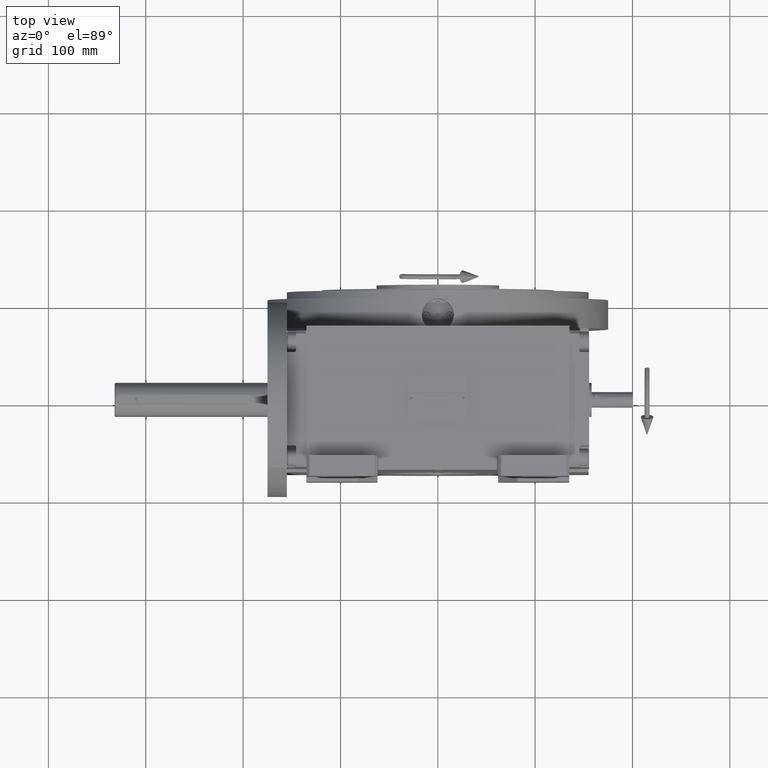
[diagram: clean part render]
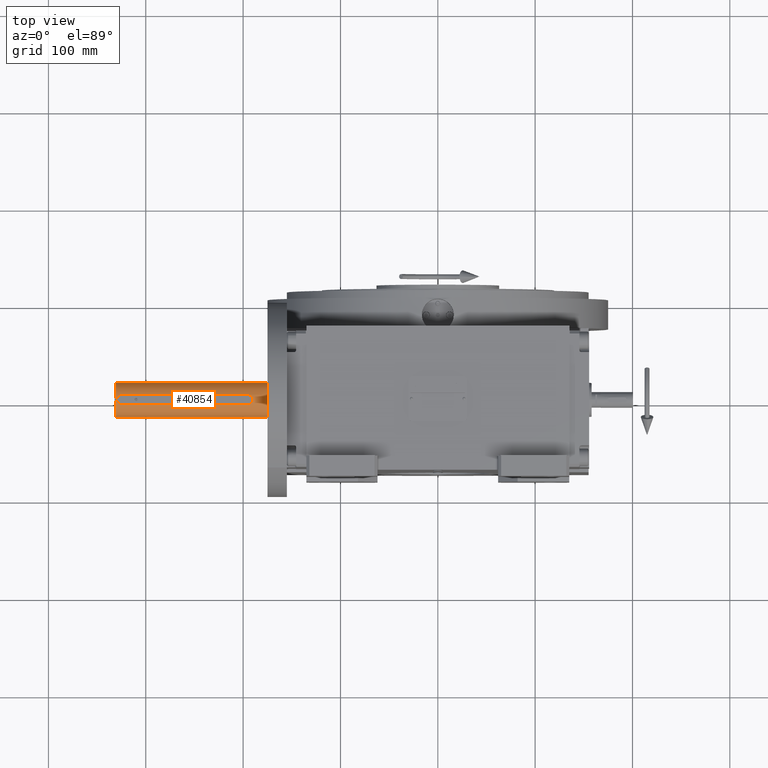
[diagram: same view with one face highlighted and labeled with its STEP entity id]
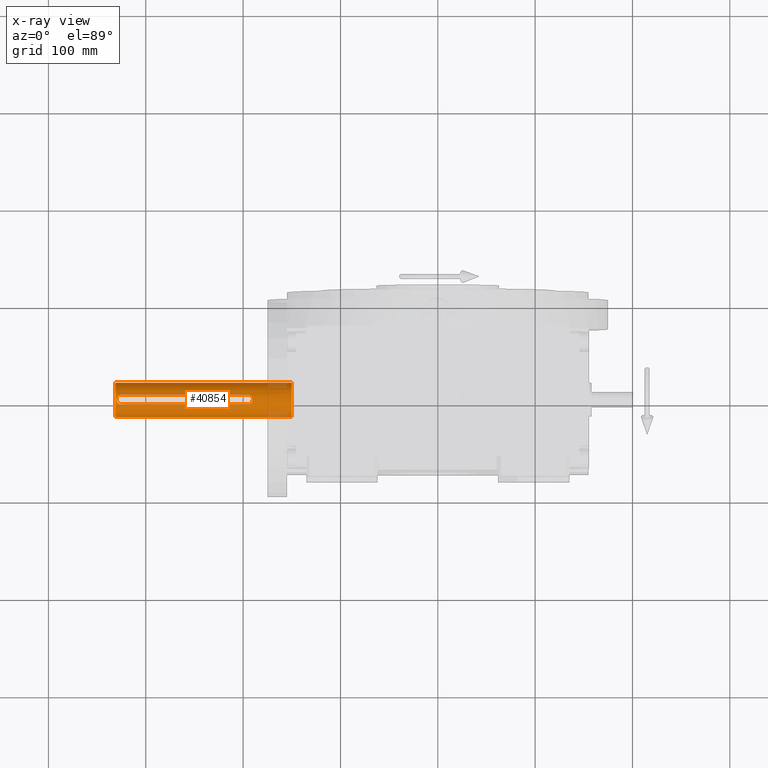
[diagram: x-ray of the same camera — body ghosted, the highlighted face saturated]
A machine part, top view. The second image highlights one B-rep face of the part: STEP entity #40854.
The next image is the same camera in x-ray: the body ghosted, the highlighted face saturated — about 4% of this face is hidden behind the body in this view.
In plain terms, the highlighted cylindrical surface (edge-blend (fillet) strip) has radius 17.5 mm, axis along (-1, 0, -0).
Its self-contained STEP definition (entity closure, byte-faithful):
#102 = CARTESIAN_POINT ( 'NONE',  ( 1.501895692759464218, -262.7698234776709114, 17.43543527126998072 ) ) ;
#210 = CARTESIAN_POINT ( 'NONE',  ( -4.842034854376789710, -259.2579104254566573, 16.81726199627639318 ) ) ;
#282 = CARTESIAN_POINT ( 'NONE',  ( 4.162420228072862827, -125.2248264025985236, 16.99969503981119701 ) ) ;
#473 = CARTESIAN_POINT ( 'NONE',  ( 3.347353908840914549, -261.7145326014401121, 17.17664499290346924 ) ) ;
#603 = VERTEX_POINT ( 'NONE', #715 ) ;
#647 = CARTESIAN_POINT ( 'NONE',  ( -3.234230935263585849, -124.1855704254134878, 17.19818314604563625 ) ) ;
#715 = CARTESIAN_POINT ( 'NONE',  ( -17.50000000000000000, -264.0000000000000000, 0.000000000000000000 ) ) ;
#1007 = CARTESIAN_POINT ( 'NONE',  ( 4.732781619121888994, -126.3834549186023963, 16.84815184275602462 ) ) ;
#1188 = CARTESIAN_POINT ( 'NONE',  ( 2.935739248948017632, -262.0518172766140310, 17.25139546885468178 ) ) ;
#1361 = CARTESIAN_POINT ( 'NONE',  ( 4.542437001687702924, -125.8984245074047692, 16.90079286767720390 ) ) ;
#1701 = EDGE_CURVE ( 'NONE', #18889, #603, #20198, .T. ) ;
#1715 = CARTESIAN_POINT ( 'NONE',  ( -5.000000000000141220, -127.3875473802005587, 16.77050983124994232 ) ) ;
#1970 = CARTESIAN_POINT ( 'NONE',  ( 17.50000000000000000, -264.0000000000000000, 0.000000000000000000 ) ) ;
#2346 = CARTESIAN_POINT ( 'NONE',  ( -1.904706746318573840, -262.6229974838985868, 17.39594987106363533 ) ) ;
#2606 = CARTESIAN_POINT ( 'NONE',  ( 4.999999999999868550, -258.0000000000000000, 16.77050983125000272 ) ) ;
#3281 = B_SPLINE_CURVE_WITH_KNOTS ( 'NONE', 3,
 ( #22833, #50089, #50804, #39144, #55187, #66460, #1007, #67537, #51170, #33355, #17726, #6815, #18072, #1361, #27928, #282, #56611, #61703, #39513, #55908, #33717, #11925, #61348, #67901, #39875, #45720, #67175, #44992, #27572, #29010, #22121, #56265, #71296, #33011, #17008, #66813, #11561, #50462, #23551, #16657, #38797, #34085, #6105, #40209, #45356, #60994, #6459, #11197, #28650, #44645, #17370, #28307, #55548, #49736, #5743, #647, #22486, #23201, #62068, #12268, #34426, #62411, #51525, #41640, #63136, #36182, #68238, #25319, #68601, #46419, #18787, #30068, #58394, #23901, #1715, #40935 ),
 .UNSPECIFIED., .F., .F.,
 ( 4, 2, 2, 1, 1, 1, 1, 2, 2, 2, 2, 2, 2, 2, 2, 2, 2, 1, 1, 1, 2, 2, 2, 2, 2, 1, 1, 1, 1, 2, 2, 2, 2, 2, 2, 2, 2, 2, 2, 1, 1, 1, 2, 2, 4 ),
 ( 0.000000000000000000, 0.06249999999977622067, 0.09374999999966435182, 0.1093749999996084243, 0.1171874999995828476, 0.1210937499995700523, 0.1230468749995612954, 0.1240234374995568545, 0.1249999999995524136, 0.1874999999996057598, 0.2187499999996324329, 0.2343749999996457833, 0.2421874999996516953, 0.2499999999996576072, 0.3124999999996964650, 0.3437499999997158939, 0.3593749999997249422, 0.3671874999997287725, 0.3710937499997313815, 0.3730468749997326583, 0.3740234374997333244, 0.3749999999997339906, 0.4999999999998093747, 0.5624999999998470113, 0.5937499999998658851, 0.6093749999998756550, 0.6171874999998805400, 0.6210937499998829825, 0.6230468749998837596, 0.6240234374998845368, 0.6249999999998854250, 0.6874999999999850120, 0.7187500000000340838, 0.7343750000000586198, 0.7421875000000709433, 0.7500000000000832667, 0.8125000000001871836, 0.8437500000002413625, 0.8593750000002656764, 0.8671875000002746692, 0.8710937500002758904, 0.8730468750002764455, 0.8740234375002734479, 0.8750000000002703393, 1.000000000000000000 ),
 .UNSPECIFIED. ) ;
#3434 = CARTESIAN_POINT ( 'NONE',  ( -17.50000000000000000, -82.99999999999998579, 0.000000000000000000 ) ) ;
#3525 = CARTESIAN_POINT ( 'NONE',  ( 5.093775602492149194E-09, -262.9999999996946940, 17.50000000013420021 ) ) ;
#3843 = LINE ( 'NONE', #70739, #64119 ) ;
#5664 = CARTESIAN_POINT ( 'NONE',  ( -4.542437277811639085, -260.1015751157662521, 16.90079280864252809 ) ) ;
#5743 = CARTESIAN_POINT ( 'NONE',  ( -3.159067883749771877, -124.1232439770681850, 17.21193873535545649 ) ) ;
#5925 = CARTESIAN_POINT ( 'NONE',  ( 3.234232108542753448, -261.8144285575759227, 17.19818297409014818 ) ) ;
#6105 = CARTESIAN_POINT ( 'NONE',  ( -1.501886924900194042, -123.2301737475164600, 17.43543603086317972 ) ) ;
#6459 = CARTESIAN_POINT ( 'NONE',  ( -1.863465453713099240, -123.3602053940683589, 17.40042896225917346 ) ) ;
#6518 = EDGE_CURVE ( 'NONE', #30531, #43905, #46523, .T. ) ;
#6570 = DIRECTION ( 'NONE',  ( 4.683861624749757595E-31, -1.000000000000000000, -9.921124691641434438E-31 ) ) ;
#6633 = CARTESIAN_POINT ( 'NONE',  ( 2.114254023659751791, -262.5370259278645904, 17.37303385754892560 ) ) ;
#6815 = CARTESIAN_POINT ( 'NONE',  ( 4.631464648953309116, -126.1159714450922849, 16.87626098161021559 ) ) ;
#6989 = CARTESIAN_POINT ( 'NONE',  ( 4.502873670807930218, -260.1746133082070855, 16.91170310919593689 ) ) ;
#7085 = CARTESIAN_POINT ( 'NONE',  ( -4.631464749533314773, -259.8840283076496007, 16.87626095006745075 ) ) ;
#8049 = CARTESIAN_POINT ( 'NONE',  ( 4.885940483804438905, -259.2622884697009908, 16.80613118031759967 ) ) ;
#8108 = VERTEX_POINT ( 'NONE', #43391 ) ;
#9087 = DIRECTION ( 'NONE',  ( 4.683861624749757595E-31, -1.000000000000000000, -9.921124691641434438E-31 ) ) ;
#10169 = AXIS2_PLACEMENT_3D ( 'NONE', #64703, #9087, #14898 ) ;
#10538 = VECTOR ( 'NONE', #29025, 1000.000000000000000 ) ;
#10997 = EDGE_LOOP ( 'NONE', ( #39300, #29147, #41776, #45444 ) ) ;
#11197 = CARTESIAN_POINT ( 'NONE',  ( -1.878239919245694001, -123.3661848275047248, 17.39883350825535757 ) ) ;
#11375 = CARTESIAN_POINT ( 'NONE',  ( 1.888091964170418580, -262.6298096053150744, 17.39776502231443800 ) ) ;
#11561 = CARTESIAN_POINT ( 'NONE',  ( 1.268318712143633675, -123.1158903789694676, 17.46555605531072075 ) ) ;
#11862 = AXIS2_PLACEMENT_3D ( 'NONE', #46868, #24344, #41363 ) ;
#11925 = CARTESIAN_POINT ( 'NONE',  ( 3.612073298987021897, -124.5422940804064353, 17.12316201754027034 ) ) ;
#12107 = CARTESIAN_POINT ( 'NONE',  ( 0.3085228605959161041, -262.9999999996857127, 17.50000347180874982 ) ) ;
#12268 = CARTESIAN_POINT ( 'NONE',  ( -3.497516888298030757, -124.4264364162639964, 17.14690826482142683 ) ) ;
#12280 = VECTOR ( 'NONE', #47460, 1000.000000000000000 ) ;
#12808 = CARTESIAN_POINT ( 'NONE',  ( 4.624759947186820597, -259.9004230880138380, 16.87810877589848957 ) ) ;
#13168 = CARTESIAN_POINT ( 'NONE',  ( 4.608356021093786836, -259.9399531697240491, 16.88263736459408904 ) ) ;
#13604 = CARTESIAN_POINT ( 'NONE',  ( -0.6170496532113916022, -263.0000000006286314, 17.49999305714327846 ) ) ;
#14898 = DIRECTION ( 'NONE',  ( 1.000000000000000000, 0.000000000000000000, -8.437694987151189707E-15 ) ) ;
#15218 = EDGE_CURVE ( 'NONE', #36107, #43905, #22503, .T. ) ;
#16657 = CARTESIAN_POINT ( 'NONE',  ( -0.6251310128719658188, -123.0286333187830365, 17.49139670606375319 ) ) ;
#16832 = CARTESIAN_POINT ( 'NONE',  ( 3.159069632934046634, -261.8767545833460986, 17.21193846796699134 ) ) ;
#17008 = CARTESIAN_POINT ( 'NONE',  ( 1.904711576633607351, -123.3770045061887117, 17.39594926263111674 ) ) ;
#17370 = CARTESIAN_POINT ( 'NONE',  ( -2.114251007186052522, -123.4629728661929846, 17.37303433958156162 ) ) ;
#17726 = CARTESIAN_POINT ( 'NONE',  ( 4.635469552925997938, -126.1258467474329308, 16.87515653095371349 ) ) ;
#17852 = EDGE_CURVE ( 'NONE', #8108, #18889, #43329, .T. ) ;
#17916 = CARTESIAN_POINT ( 'NONE',  ( 3.844926065614967303, -261.2260398198547477, 17.07518105103118700 ) ) ;
#18072 = CARTESIAN_POINT ( 'NONE',  ( 4.628761715133771659, -126.1093447490784456, 16.87700600284648900 ) ) ;
#18249 = CARTESIAN_POINT ( 'NONE',  ( 1.759856267567453836, -262.6803888758968810, 17.41128740694379928 ) ) ;
#18349 = CARTESIAN_POINT ( 'NONE',  ( -1.911505512587812428, -262.6201904940112399, 17.39520092451528654 ) ) ;
#18711 = CARTESIAN_POINT ( 'NONE',  ( -3.884377399731936187, -261.1497328166345824, 17.06427786905216237 ) ) ;
#18787 = CARTESIAN_POINT ( 'NONE',  ( -4.622071993000004930, -126.0930487750445081, 16.87885016184620568 ) ) ;
#18889 = VERTEX_POINT ( 'NONE', #3434 ) ;
#19077 = CARTESIAN_POINT ( 'NONE',  ( -1.945787364522895357, -262.6058987682704355, 17.39138318551235685 ) ) ;
#19315 = CARTESIAN_POINT ( 'NONE',  ( 4.618008891653738068, -259.9167895955579297, 16.87997127913907391 ) ) ;
#19416 = CARTESIAN_POINT ( 'NONE',  ( -1.921731612634906661, -262.6159552993932493, 17.39407043957068666 ) ) ;
#20044 = CARTESIAN_POINT ( 'NONE',  ( 4.625406379370909704, -259.8988534053556805, 16.87793046203191949 ) ) ;
#20198 = LINE ( 'NONE', #64883, #12280 ) ;
#20370 = FACE_OUTER_BOUND ( 'NONE', #10997, .T. ) ;
#22121 = CARTESIAN_POINT ( 'NONE',  ( 1.994677601700525660, -123.4149261101952817, 17.38581007718757121 ) ) ;
#22486 = CARTESIAN_POINT ( 'NONE',  ( -3.347353695834640597, -124.2854672009111141, 17.17664499737248107 ) ) ;
#22503 = LINE ( 'NONE', #45373, #10538 ) ;
#22833 = CARTESIAN_POINT ( 'NONE',  ( 4.999999999999868550, -128.0000000000000000, 16.77050983125000272 ) ) ;
#23013 = CARTESIAN_POINT ( 'NONE',  ( 1.863470847385586326, -262.6397924393352810, 17.40042830592582845 ) ) ;
#23201 = CARTESIAN_POINT ( 'NONE',  ( -3.385123344564251013, -124.3198336493054228, 17.16931482036336121 ) ) ;
#23374 = CARTESIAN_POINT ( 'NONE',  ( 3.385123221477869482, -261.6801664570794514, 17.16931487577934590 ) ) ;
#23476 = CARTESIAN_POINT ( 'NONE',  ( -4.880581084865575292, -259.0982389455385260, 16.80613052841295030 ) ) ;
#23551 = CARTESIAN_POINT ( 'NONE',  ( -0.3084998514150972260, -122.9999982966258756, 17.50000383068682197 ) ) ;
#23835 = CARTESIAN_POINT ( 'NONE',  ( -1.268304681800524802, -262.8841137221837698, 17.46555717802110763 ) ) ;
#23901 = CARTESIAN_POINT ( 'NONE',  ( -4.885940876073433969, -126.7377139963114843, 16.80613103330953706 ) ) ;
#24344 = DIRECTION ( 'NONE',  ( 1.322191977396639089E-16, -1.000000000000000000, 2.442490654175352672E-15 ) ) ;
#24541 = CARTESIAN_POINT ( 'NONE',  ( -2.509837787114711283, -262.3275820955175845, 17.31823714838043315 ) ) ;
#24805 = CARTESIAN_POINT ( 'NONE',  ( 4.999999999999868550, -128.0000000000000000, 16.77050983125000272 ) ) ;
#24910 = CARTESIAN_POINT ( 'NONE',  ( -4.423757400476747037, -260.3536554255487090, 16.93430137671104774 ) ) ;
#25283 = LINE ( 'NONE', #47449, #27536 ) ;
#25319 = CARTESIAN_POINT ( 'NONE',  ( -4.588328461020479310, -126.0128477245919214, 16.88817570639319499 ) ) ;
#26032 = DIRECTION ( 'NONE',  ( 1.547948530345931256E-10, 1.000000000000000000, 8.275136925702999375E-10 ) ) ;
#27536 = VECTOR ( 'NONE', #48518, 1000.000000000000000 ) ;
#27572 = CARTESIAN_POINT ( 'NONE',  ( 2.125955927921573618, -123.4740227685277318, 17.37001148618863056 ) ) ;
#27928 = CARTESIAN_POINT ( 'NONE',  ( 4.423757888041341069, -125.6463456602269275, 16.93430125310973722 ) ) ;
#28307 = CARTESIAN_POINT ( 'NONE',  ( -2.369780499503689963, -123.5848942801518007, 17.33972633534446928 ) ) ;
#28331 = EDGE_CURVE ( 'NONE', #68478, #603, #32873, .T. ) ;
#28578 = CARTESIAN_POINT ( 'NONE',  ( -4.971800975163426450, -258.6212866432993565, 16.77941500554069876 ) ) ;
#28650 = CARTESIAN_POINT ( 'NONE',  ( -1.888086783408707392, -123.3701882818614735, 17.39776566768476229 ) ) ;
#29010 = CARTESIAN_POINT ( 'NONE',  ( 2.037880815810283242, -123.4340300693752965, 17.38069459936438577 ) ) ;
#29025 = DIRECTION ( 'NONE',  ( 4.683861624749757595E-31, -1.000000000000000000, -9.921124691641434438E-31 ) ) ;
#29147 = ORIENTED_EDGE ( 'NONE', *, *, #17852, .T. ) ;
#29994 = CARTESIAN_POINT ( 'NONE',  ( -2.375783309033664192, -262.4017652371167628, 17.33730425552254673 ) ) ;
#30068 = CARTESIAN_POINT ( 'NONE',  ( -4.624762359706451775, -126.0995827828929947, 16.87810810758951874 ) ) ;
#30342 = CARTESIAN_POINT ( 'NONE',  ( -3.719513498338512747, -261.3418333352537957, 17.10035189615606299 ) ) ;
#30531 = VERTEX_POINT ( 'NONE', #3525 ) ;
#32873 = CIRCLE ( 'NONE', #43304, 17.50000000000000000 ) ;
#33011 = CARTESIAN_POINT ( 'NONE',  ( 1.911510430003945826, -123.3798115404296283, 17.39520030242774951 ) ) ;
#33280 = CARTESIAN_POINT ( 'NONE',  ( -5.000000000000132339, -258.0000000000000000, 16.77050983125000272 ) ) ;
#33355 = CARTESIAN_POINT ( 'NONE',  ( 4.641450815331127799, -126.1406633475212544, 16.87350637731536196 ) ) ;
#33714 = ORIENTED_EDGE ( 'NONE', *, *, #37367, .F. ) ;
#33717 = CARTESIAN_POINT ( 'NONE',  ( 3.684489740082628195, -124.6195652500198747, 17.10784978392882749 ) ) ;
#34085 = CARTESIAN_POINT ( 'NONE',  ( -1.262863900371991921, -123.1592560462874104, 17.45480780732533077 ) ) ;
#34259 = CARTESIAN_POINT ( 'NONE',  ( 1.878245184996126360, -262.6338130380575535, 17.39883285846285688 ) ) ;
#34332 = EDGE_LOOP ( 'NONE', ( #45687, #38489, #33714, #52316, #43267 ) ) ;
#34426 = CARTESIAN_POINT ( 'NONE',  ( -3.844926560140513150, -124.7739608981221267, 17.07518086293189441 ) ) ;
#34606 = CARTESIAN_POINT ( 'NONE',  ( 4.336594759285185674, -260.4942482367626440, 16.95611393122744204 ) ) ;
#35419 = CARTESIAN_POINT ( 'NONE',  ( -2.186892667464261031, -262.4969402202535775, 17.36228757374977860 ) ) ;
#36107 = VERTEX_POINT ( 'NONE', #24805 ) ;
#36182 = CARTESIAN_POINT ( 'NONE',  ( -4.531139679783159124, -125.8851215603752678, 16.90395466647109046 ) ) ;
#37367 = EDGE_CURVE ( 'NONE', #66960, #30531, #71621, .T. ) ;
#38489 = ORIENTED_EDGE ( 'NONE', *, *, #6518, .F. ) ;
#38797 = CARTESIAN_POINT ( 'NONE',  ( -1.103075304018099612, -123.1204975930677534, 17.46556958613429344 ) ) ;
#39144 = CARTESIAN_POINT ( 'NONE',  ( 4.880581074404434894, -126.9017610046501119, 16.80613053903773135 ) ) ;
#39300 = ORIENTED_EDGE ( 'NONE', *, *, #49395, .T. ) ;
#39336 = CARTESIAN_POINT ( 'NONE',  ( 5.093775602492149194E-09, -262.9999999996946940, 17.50000000013420021 ) ) ;
#39438 = CARTESIAN_POINT ( 'NONE',  ( -5.000000000000142109, -258.3061809315221353, 16.77050983124994588 ) ) ;
#39513 = CARTESIAN_POINT ( 'NONE',  ( 3.821173716512030527, -124.7736779114591172, 17.07832863399624657 ) ) ;
#39798 = CARTESIAN_POINT ( 'NONE',  ( -4.655224715116748513, -259.8247395219475493, 16.86970164566432473 ) ) ;
#39875 = CARTESIAN_POINT ( 'NONE',  ( 2.929826833818857335, -123.9348893398118179, 17.25379986878437677 ) ) ;
#40019 = EDGE_CURVE ( 'NONE', #56113, #66960, #25283, .T. ) ;
#40209 = CARTESIAN_POINT ( 'NONE',  ( -1.621231168162704739, -123.2688255401362625, 17.42494286556990701 ) ) ;
#40329 = CARTESIAN_POINT ( 'NONE',  ( 1.178669125964988342E-28, -264.0000000000000000, 0.000000000000000000 ) ) ;
#40854 = ADVANCED_FACE ( 'NONE', ( #48353, #20370 ), #63983, .T. ) ;
#40862 = CARTESIAN_POINT ( 'NONE',  ( -3.234561122261602861, -261.8365982329318058, 17.20119755775428416 ) ) ;
#40935 = CARTESIAN_POINT ( 'NONE',  ( -5.000000000000132339, -128.0000000000000000, 16.77050983125000272 ) ) ;
#41363 = DIRECTION ( 'NONE',  ( -8.437694987151189707E-15, 2.379049338482478132E-15, 1.000000000000000000 ) ) ;
#41452 = CARTESIAN_POINT ( 'NONE',  ( 4.531137895470906507, -260.1148822472458733, 16.90395515012991012 ) ) ;
#41640 = CARTESIAN_POINT ( 'NONE',  ( -4.409759546752228587, -125.6392208261093089, 16.93683699068737170 ) ) ;
#41776 = ORIENTED_EDGE ( 'NONE', *, *, #1701, .T. ) ;
#43267 = ORIENTED_EDGE ( 'NONE', *, *, #51996, .F. ) ;
#43304 = AXIS2_PLACEMENT_3D ( 'NONE', #40329, #6570, #61829 ) ;
#43329 = CIRCLE ( 'NONE', #11862, 17.50000000000000000 ) ;
#43391 = CARTESIAN_POINT ( 'NONE',  ( 17.49999999891786828, -82.99999999999995737, -5.792588630981754250E-09 ) ) ;
#43447 = CARTESIAN_POINT ( 'NONE',  ( -5.000000000000132339, -258.0000000000000000, 16.77050983125000272 ) ) ;
#43905 = VERTEX_POINT ( 'NONE', #68168 ) ;
#44464 = CARTESIAN_POINT ( 'NONE',  ( 1.828968883022213499, -262.6535642902260861, 17.40410686935521767 ) ) ;
#44571 = CARTESIAN_POINT ( 'NONE',  ( -4.635469651628576493, -259.8741530084349733, 16.87515649974037757 ) ) ;
#44645 = CARTESIAN_POINT ( 'NONE',  ( -1.894549421852681714, -123.3728306886450667, 17.39706116371026923 ) ) ;
#44992 = CARTESIAN_POINT ( 'NONE',  ( 2.186900100245433354, -123.5030633884173454, 17.36228653403228606 ) ) ;
#45356 = CARTESIAN_POINT ( 'NONE',  ( -1.759849957014634425, -123.3196087456178560, 17.41128810453562537 ) ) ;
#45373 = CARTESIAN_POINT ( 'NONE',  ( 4.999999999999868550, -128.0000000000000000, 16.77050983125000272 ) ) ;
#45444 = ORIENTED_EDGE ( 'NONE', *, *, #28331, .F. ) ;
#45538 = CARTESIAN_POINT ( 'NONE',  ( 3.460657349984056719, -261.6092291534899914, 17.15435306140728500 ) ) ;
#45642 = CARTESIAN_POINT ( 'NONE',  ( -4.771343392677507289, -259.4970612116816255, 16.83729863843058894 ) ) ;
#45687 = ORIENTED_EDGE ( 'NONE', *, *, #15218, .T. ) ;
#45720 = CARTESIAN_POINT ( 'NONE',  ( 2.509846221078594120, -123.6724227984388307, 17.31823588289791260 ) ) ;
#45981 = CARTESIAN_POINT ( 'NONE',  ( -3.573759717739393160, -261.4972965594108700, 17.13116649804004155 ) ) ;
#46344 = CARTESIAN_POINT ( 'NONE',  ( 5.093775602492149194E-09, -262.9999999996946940, 17.50000000013420021 ) ) ;
#46419 = CARTESIAN_POINT ( 'NONE',  ( -4.618011251603300060, -126.0832160896447363, 16.87997062732716103 ) ) ;
#46523 = B_SPLINE_CURVE_WITH_KNOTS ( 'NONE', 3,
 ( #39336, #12107, #49920, #68073, #51348, #102, #56100, #18249, #44464, #23013, #34259, #11375, #56442, #6633, #50995, #55730, #1188, #16832, #5925, #473, #23374, #45538, #67727, #17916, #62240, #34606, #56798, #6989, #41452, #46591, #64012, #13168, #19315, #69499, #12808, #20044, #8049, #57858, #2606 ),
 .UNSPECIFIED., .F., .F.,
 ( 4, 2, 2, 1, 1, 1, 1, 2, 2, 2, 2, 2, 2, 2, 2, 2, 2, 1, 1, 1, 2, 2, 4 ),
 ( 0.5000015992689906819, 0.5625013993604415230, 0.5937512994061669991, 0.6093762494290297926, 0.6171887244404594686, 0.6210949619461741955, 0.6230480806990335019, 0.6240246400754612122, 0.6250011994518889225, 0.6875009995429259835, 0.7187508995884417384, 0.7343758496111996159, 0.7421883246225757791, 0.7500007996339519423, 0.8125005997249612477, 0.8437504997704616816, 0.8593754497932173386, 0.8671879248045952782, 0.8710941623102909093, 0.8730472810631387803, 0.8740238404395697103, 0.8750003998160006402, 1.000000000000000000 ),
 .UNSPECIFIED. ) ;
#46591 = CARTESIAN_POINT ( 'NONE',  ( 4.569873882658789910, -260.0290976032375170, 16.89327838264777526 ) ) ;
#46704 = CARTESIAN_POINT ( 'NONE',  ( -2.125948883350739838, -262.5259805321150566, 17.37001245607786615 ) ) ;
#46868 = CARTESIAN_POINT ( 'NONE',  ( 4.391120273202897745E-29, -82.99999999999998579, 0.000000000000000000 ) ) ;
#47060 = CARTESIAN_POINT ( 'NONE',  ( -4.162418586371348539, -260.7751760956654721, 16.99969540087490572 ) ) ;
#47449 = CARTESIAN_POINT ( 'NONE',  ( -5.000000000000132339, -128.0000000000000000, 16.77050983125000272 ) ) ;
#47460 = DIRECTION ( 'NONE',  ( 1.547948341370931421E-10, -1.000000000000000000, 8.275137155567000740E-10 ) ) ;
#48353 = FACE_BOUND ( 'NONE', #34332, .T. ) ;
#48518 = DIRECTION ( 'NONE',  ( 4.683861624749757595E-31, -1.000000000000000000, -9.921124691641434438E-31 ) ) ;
#49395 = EDGE_CURVE ( 'NONE', #68478, #8108, #3843, .T. ) ;
#49736 = CARTESIAN_POINT ( 'NONE',  ( -2.935736023998615885, -123.9481803323317166, 17.25139597386807822 ) ) ;
#49920 = CARTESIAN_POINT ( 'NONE',  ( 0.6251497259578785437, -262.9713640876541945, 17.49139611417376372 ) ) ;
#50089 = CARTESIAN_POINT ( 'NONE',  ( 4.999999999999858780, -127.6938190946761154, 16.77050983125003114 ) ) ;
#50462 = CARTESIAN_POINT ( 'NONE',  ( 0.6170825212452194508, -123.0000034069768589, 17.49999233856630454 ) ) ;
#50731 = CARTESIAN_POINT ( 'NONE',  ( -4.732781675498684670, -259.6165449140654005, 16.84815181959745090 ) ) ;
#50804 = CARTESIAN_POINT ( 'NONE',  ( 4.971800980112173640, -127.3787133728083489, 16.77941500819694909 ) ) ;
#50995 = CARTESIAN_POINT ( 'NONE',  ( 2.369784954068792082, -262.4151033092676357, 17.33972565095549001 ) ) ;
#51170 = CARTESIAN_POINT ( 'NONE',  ( 4.655224625538023631, -126.1752602493793347, 16.86970167525063502 ) ) ;
#51348 = CARTESIAN_POINT ( 'NONE',  ( 1.262875128674795233, -262.8407409690728400, 17.45480703325925376 ) ) ;
#51525 = CARTESIAN_POINT ( 'NONE',  ( -4.336595728797020932, -125.5057534233630889, 16.95611364562377688 ) ) ;
#51794 = CARTESIAN_POINT ( 'NONE',  ( -2.929819078505131014, -262.0651162605171294, 17.25380114198223325 ) ) ;
#51856 = CARTESIAN_POINT ( 'NONE',  ( -5.000000000000132339, -128.0000000000000000, 16.77050983125000272 ) ) ;
#51996 = EDGE_CURVE ( 'NONE', #36107, #56113, #3281, .T. ) ;
#52156 = CARTESIAN_POINT ( 'NONE',  ( -3.821170985243643514, -261.2263253278725301, 17.07832920059219717 ) ) ;
#52316 = ORIENTED_EDGE ( 'NONE', *, *, #40019, .F. ) ;
#52512 = CARTESIAN_POINT ( 'NONE',  ( -1.902849250913077661, -262.6237639426730652, 17.39615436612104205 ) ) ;
#55187 = CARTESIAN_POINT ( 'NONE',  ( 4.842034834946561617, -126.7420894944168452, 16.81726201022137701 ) ) ;
#55466 = CARTESIAN_POINT ( 'NONE',  ( -4.682043968586252269, -259.7554519013795584, 16.86227486944918397 ) ) ;
#55548 = CARTESIAN_POINT ( 'NONE',  ( -2.789780531609514558, -123.8473647982552990, 17.27528809365403006 ) ) ;
#55730 = CARTESIAN_POINT ( 'NONE',  ( 2.789784400899855576, -262.1526325971008191, 17.27528749512270068 ) ) ;
#55908 = CARTESIAN_POINT ( 'NONE',  ( 3.719516470660074070, -124.6581699740740987, 17.10035128387886871 ) ) ;
#56100 = CARTESIAN_POINT ( 'NONE',  ( 1.621238757876945602, -262.7311718358880626, 17.42494212504017170 ) ) ;
#56113 = VERTEX_POINT ( 'NONE', #51856 ) ;
#56265 = CARTESIAN_POINT ( 'NONE',  ( 1.945792704352922176, -123.3941034865152915, 17.39138249680974369 ) ) ;
#56442 = CARTESIAN_POINT ( 'NONE',  ( 1.894548785504498678, -262.6271695719491390, 17.39706115084674565 ) ) ;
#56611 = CARTESIAN_POINT ( 'NONE',  ( 4.061336139067857509, -125.0772672008790067, 17.02401483680380778 ) ) ;
#56798 = CARTESIAN_POINT ( 'NONE',  ( 4.409758335967742582, -260.3607813876579371, 16.93683732862779934 ) ) ;
#57858 = CARTESIAN_POINT ( 'NONE',  ( 4.999999999999859668, -258.6124536561169407, 16.77050983125003114 ) ) ;
#58394 = CARTESIAN_POINT ( 'NONE',  ( -4.625407973356348457, -126.1011504774668879, 16.87793001871091647 ) ) ;
#60994 = CARTESIAN_POINT ( 'NONE',  ( -1.828963187797529422, -123.3464334700042286, 17.40410754030378015 ) ) ;
#61348 = CARTESIAN_POINT ( 'NONE',  ( 3.573762436256632036, -124.5027062250951673, 17.13116592675279293 ) ) ;
#61703 = CARTESIAN_POINT ( 'NONE',  ( 3.884379959566059970, -124.8502703461868890, 17.06427733443086936 ) ) ;
#61829 = DIRECTION ( 'NONE',  ( 1.000000000000000000, 0.000000000000000000, -8.437694987151189707E-15 ) ) ;
#61996 = CARTESIAN_POINT ( 'NONE',  ( -4.628762677838383688, -259.8906528940564158, 16.87700573361427914 ) ) ;
#62068 = CARTESIAN_POINT ( 'NONE',  ( -3.460658171489124690, -124.3907716272305493, 17.15435287810897691 ) ) ;
#62240 = CARTESIAN_POINT ( 'NONE',  ( 4.075260057107485068, -260.9157450091464057, 17.02150510796154137 ) ) ;
#62411 = CARTESIAN_POINT ( 'NONE',  ( -4.075260547854901994, -125.0842555894872987, 17.02150492464168963 ) ) ;
#62698 = CARTESIAN_POINT ( 'NONE',  ( -4.061334114046973198, -260.9227356385767393, 17.02401527093969946 ) ) ;
#63136 = CARTESIAN_POINT ( 'NONE',  ( -4.502875303996456857, -125.8253900605690063, 16.91170266538711431 ) ) ;
#63764 = CARTESIAN_POINT ( 'NONE',  ( -3.684486690099469275, -261.3804380751896588, 17.10785041105298632 ) ) ;
#63983 = CYLINDRICAL_SURFACE ( 'NONE', #10169, 17.50000000000000000 ) ;
#64012 = CARTESIAN_POINT ( 'NONE',  ( 4.588326318944401905, -259.9871572139803675, 16.88817629168592305 ) ) ;
#64119 = VECTOR ( 'NONE', #26032, 1000.000000000000000 ) ;
#64124 = CARTESIAN_POINT ( 'NONE',  ( -2.037874513936912546, -262.5659727411990616, 17.38069544394851107 ) ) ;
#64703 = CARTESIAN_POINT ( 'NONE',  ( 4.410379572646770103E-29, -76.00000000000001421, 0.000000000000000000 ) ) ;
#64883 = CARTESIAN_POINT ( 'NONE',  ( -17.49999999999986855, -76.00000000000001421, 0.000000000000000000 ) ) ;
#66460 = CARTESIAN_POINT ( 'NONE',  ( 4.771343350212412737, -126.5029386518562973, 16.83729865835195838 ) ) ;
#66813 = CARTESIAN_POINT ( 'NONE',  ( 1.902859632479607876, -123.3762403297673842, 17.39615315086187053 ) ) ;
#66960 = VERTEX_POINT ( 'NONE', #43447 ) ;
#67175 = CARTESIAN_POINT ( 'NONE',  ( 2.375791593876991126, -123.5982392101968514, 17.33730304744569395 ) ) ;
#67537 = CARTESIAN_POINT ( 'NONE',  ( 4.682043890974794564, -126.2445478910489385, 16.86227489682028846 ) ) ;
#67727 = CARTESIAN_POINT ( 'NONE',  ( 3.497515512842116259, -261.5735649317346088, 17.14690854038729739 ) ) ;
#67827 = CARTESIAN_POINT ( 'NONE',  ( -4.641450911243182098, -259.8593364130188661, 16.87350634659421189 ) ) ;
#67901 = CARTESIAN_POINT ( 'NONE',  ( 3.234566868300826847, -124.1634069935785334, 17.20119649874846246 ) ) ;
#68073 = CARTESIAN_POINT ( 'NONE',  ( 1.103088311799239385, -262.8794994050970217, 17.46556883395825110 ) ) ;
#68168 = CARTESIAN_POINT ( 'NONE',  ( 4.999999999999868550, -258.0000000000000000, 16.77050983125000272 ) ) ;
#68171 = CARTESIAN_POINT ( 'NONE',  ( -1.994671711235321832, -262.5850764482945010, 17.38581085397846948 ) ) ;
#68238 = CARTESIAN_POINT ( 'NONE',  ( -4.569875903775924897, -125.9709069446886218, 16.89327783237315117 ) ) ;
#68478 = VERTEX_POINT ( 'NONE', #1970 ) ;
#68601 = CARTESIAN_POINT ( 'NONE',  ( -4.608358307879198534, -126.0600522605978000, 16.88263673545403876 ) ) ;
#69241 = CARTESIAN_POINT ( 'NONE',  ( -3.612070100099053604, -261.4577092621680094, 17.12316267359811306 ) ) ;
#69499 = CARTESIAN_POINT ( 'NONE',  ( 4.622069601529782190, -259.9069570213231941, 16.87885082353498234 ) ) ;
#70739 = CARTESIAN_POINT ( 'NONE',  ( 17.49999997089999937, -264.0000000291000219, -1.555725825941323137E-07 ) ) ;
#71296 = CARTESIAN_POINT ( 'NONE',  ( 1.921736659435289818, -123.3840468014433753, 17.39406979716128276 ) ) ;
#71621 = B_SPLINE_CURVE_WITH_KNOTS ( 'NONE', 3,
 ( #33280, #39438, #28578, #23476, #210, #45642, #50731, #55466, #39798, #67827, #44571, #7085, #61996, #5664, #24910, #47060, #62698, #18711, #52156, #30342, #63764, #69241, #45981, #40862, #51794, #24541, #29994, #35419, #46704, #64124, #68171, #19077, #19416, #18349, #2346, #52512, #23835, #13604, #46344 ),
 .UNSPECIFIED., .F., .F.,
 ( 4, 2, 2, 1, 1, 1, 1, 2, 2, 2, 2, 2, 2, 2, 2, 2, 2, 1, 1, 1, 2, 2, 4 ),
 ( 0.000000000000000000, 0.06250019990861203911, 0.09375029986291281980, 0.1093753498400682062, 0.1171878748286410282, 0.1210941373229273976, 0.1230472685700705476, 0.1240238341936420879, 0.1250003998172136421, 0.1875005997259156232, 0.2187506996802621728, 0.2343757496574354893, 0.2421882746460252978, 0.2500007996346151340, 0.3125009995433616350, 0.3437510994977322487, 0.3593761494749148078, 0.3671886744635060595, 0.3710949369578016577, 0.3730480682049495122, 0.3740246338285205807, 0.3750011994520917602, 0.5000015992689906819 ),
 .UNSPECIFIED. ) ;